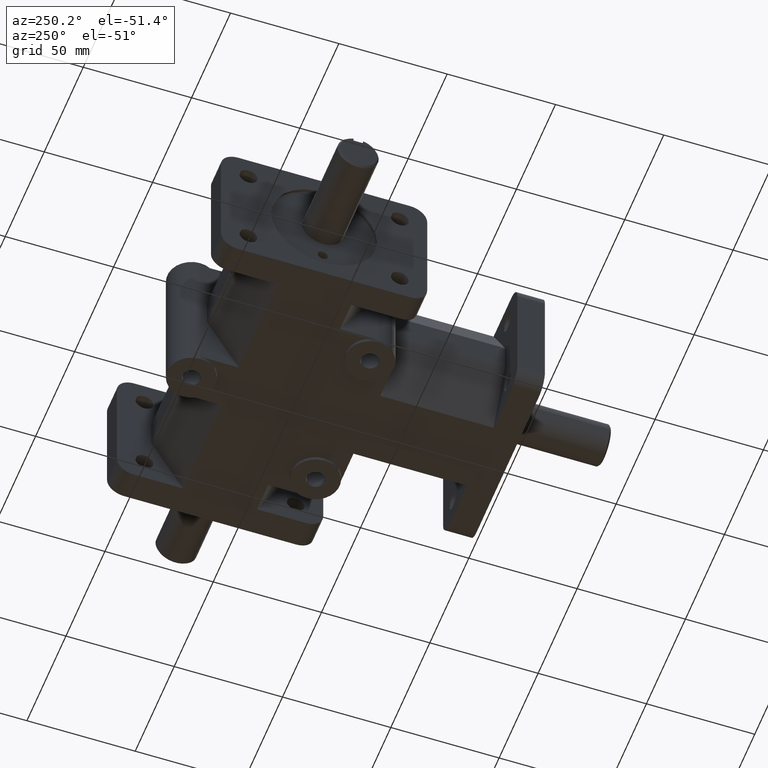
[diagram: clean part render]
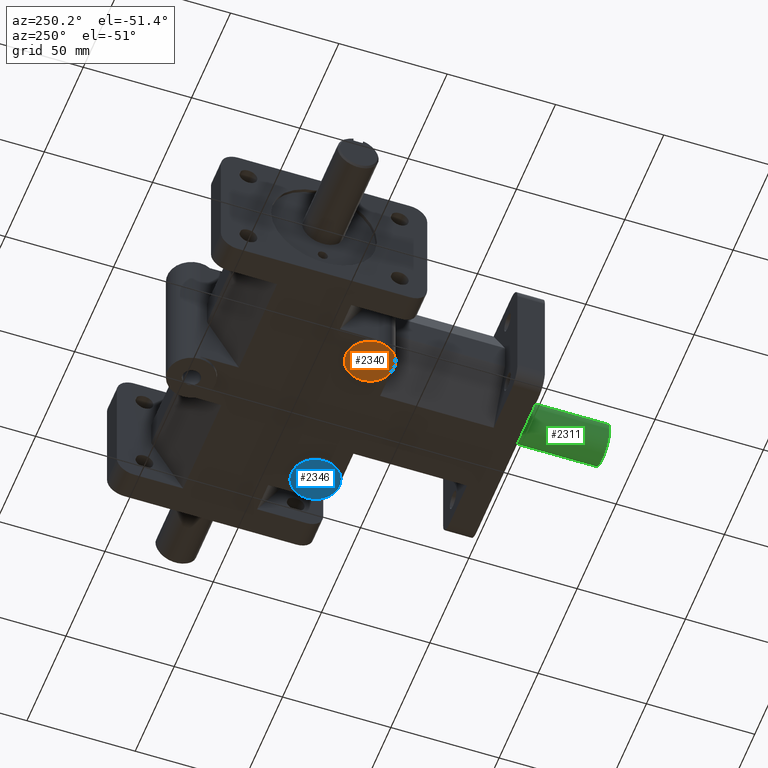
[diagram: same view with three faces highlighted in distinct colors, each labeled with its STEP entity id]
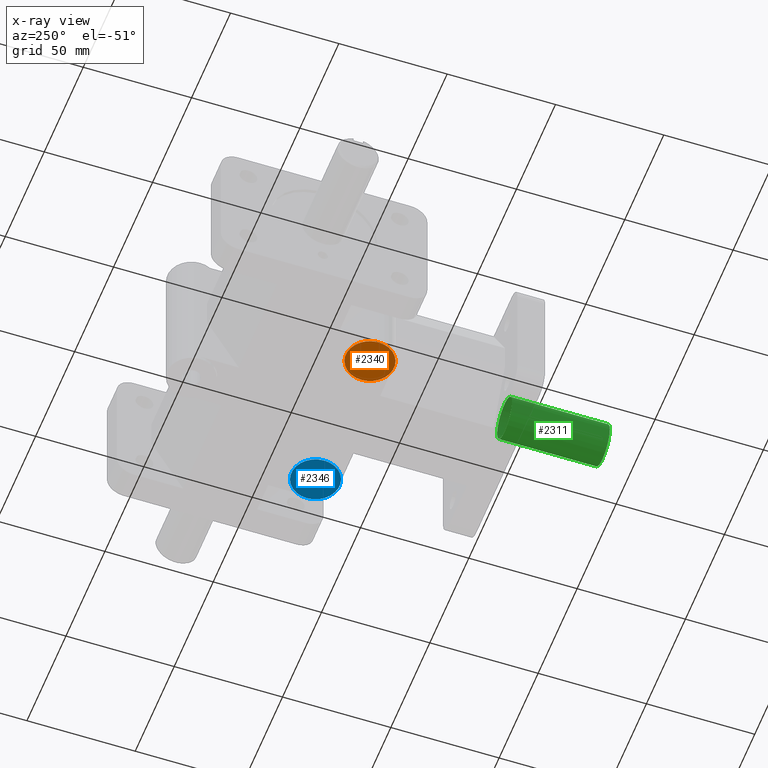
[diagram: x-ray of the same camera — body ghosted, the three highlighted faces saturated]
A machine part, auxiliary view with three faces highlighted in distinct colors.
The next image is the same camera in x-ray (body ghosted, the three faces saturated) — at least one of them is partly hidden behind the body in this view.
Their STEP definitions:

[orange] entity #2340 — the highlighted planar face has unit normal (0, 0, 1).
#535=FACE_BOUND('',#780,.T.);
#628=FACE_OUTER_BOUND('',#779,.T.);
#779=EDGE_LOOP('',(#1912));
#780=EDGE_LOOP('',(#1913));
#946=CIRCLE('',#2567,0.16375);
#953=CIRCLE('',#2578,0.4375);
#1147=VERTEX_POINT('',#3847);
#1154=VERTEX_POINT('',#3868);
#1429=EDGE_CURVE('',#1147,#1147,#946,.T.);
#1439=EDGE_CURVE('',#1154,#1154,#953,.T.);
#1912=ORIENTED_EDGE('',*,*,#1439,.F.);
#1913=ORIENTED_EDGE('',*,*,#1429,.T.);
#2221=PLANE('',#2577);
#2340=ADVANCED_FACE('',(#628,#535),#2221,.F.);
#2567=AXIS2_PLACEMENT_3D('',#3848,#3109,#3110);
#2577=AXIS2_PLACEMENT_3D('',#3867,#3132,#3133);
#2578=AXIS2_PLACEMENT_3D('',#3869,#3134,#3135);
#3109=DIRECTION('center_axis',(0.,0.,1.));
#3110=DIRECTION('ref_axis',(1.,0.,0.));
#3132=DIRECTION('center_axis',(0.,0.,1.));
#3133=DIRECTION('ref_axis',(-1.,0.,0.));
#3134=DIRECTION('center_axis',(0.,0.,1.));
#3135=DIRECTION('ref_axis',(1.,0.,0.));
#3847=CARTESIAN_POINT('',(-1.53875,3.,-1.3125));
#3848=CARTESIAN_POINT('Origin',(-1.375,3.,-1.3125));
#3867=CARTESIAN_POINT('Origin',(-1.33522727272727,3.,-1.3125));
#3868=CARTESIAN_POINT('',(-1.8125,3.,-1.3125));
#3869=CARTESIAN_POINT('Origin',(-1.375,3.,-1.3125));

[blue] entity #2346 — the highlighted planar face has unit normal (0, 0, 1).
#538=FACE_BOUND('',#789,.T.);
#634=FACE_OUTER_BOUND('',#788,.T.);
#788=EDGE_LOOP('',(#1944));
#789=EDGE_LOOP('',(#1945));
#948=CIRCLE('',#2570,0.16375);
#955=CIRCLE('',#2584,0.4375);
#1149=VERTEX_POINT('',#3853);
#1159=VERTEX_POINT('',#3885);
#1432=EDGE_CURVE('',#1149,#1149,#948,.T.);
#1447=EDGE_CURVE('',#1159,#1159,#955,.T.);
#1944=ORIENTED_EDGE('',*,*,#1447,.F.);
#1945=ORIENTED_EDGE('',*,*,#1432,.T.);
#2225=PLANE('',#2587);
#2346=ADVANCED_FACE('',(#634,#538),#2225,.F.);
#2570=AXIS2_PLACEMENT_3D('',#3854,#3116,#3117);
#2584=AXIS2_PLACEMENT_3D('',#3886,#3152,#3153);
#2587=AXIS2_PLACEMENT_3D('',#3892,#3161,#3162);
#3116=DIRECTION('center_axis',(0.,0.,1.));
#3117=DIRECTION('ref_axis',(1.,0.,0.));
#3152=DIRECTION('center_axis',(0.,0.,1.));
#3153=DIRECTION('ref_axis',(1.,0.,0.));
#3161=DIRECTION('center_axis',(0.,0.,1.));
#3162=DIRECTION('ref_axis',(-1.,0.,0.));
#3853=CARTESIAN_POINT('',(1.21125,3.,-1.3125));
#3854=CARTESIAN_POINT('Origin',(1.375,3.,-1.3125));
#3885=CARTESIAN_POINT('',(0.9375,3.,-1.3125));
#3886=CARTESIAN_POINT('Origin',(1.375,3.,-1.3125));
#3892=CARTESIAN_POINT('Origin',(1.41477272727273,3.,-1.3125));

[green] entity #2311 — the highlighted cylindrical surface (bore or boss wall) has radius 9.525 mm, axis along (0, -1, 0).
#141=LINE('',#3733,#363);
#142=LINE('',#3736,#364);
#143=LINE('',#3737,#365);
#363=VECTOR('',#2987,1.);
#364=VECTOR('',#2990,1.);
#365=VECTOR('',#2991,0.375);
#486=CYLINDRICAL_SURFACE('',#2522,0.375);
#599=FACE_OUTER_BOUND('',#749,.T.);
#749=EDGE_LOOP('',(#1785,#1786,#1787,#1788,#1789,#1790,#1791,#1792));
#870=CIRCLE('',#2426,0.375);
#924=CIRCLE('',#2519,0.375);
#925=CIRCLE('',#2520,0.375);
#927=CIRCLE('',#2523,0.375);
#976=VERTEX_POINT('',#3367);
#1112=VERTEX_POINT('',#3718);
#1113=VERTEX_POINT('',#3722);
#1114=VERTEX_POINT('',#3724);
#1116=VERTEX_POINT('',#3732);
#1117=VERTEX_POINT('',#3734);
#1197=EDGE_CURVE('',#976,#976,#870,.T.);
#1370=EDGE_CURVE('',#1112,#1113,#924,.T.);
#1371=EDGE_CURVE('',#1113,#1114,#925,.T.);
#1374=EDGE_CURVE('',#1112,#1116,#141,.T.);
#1375=EDGE_CURVE('',#1116,#1117,#927,.T.);
#1376=EDGE_CURVE('',#1117,#1114,#142,.T.);
#1377=EDGE_CURVE('',#1113,#976,#143,.T.);
#1785=ORIENTED_EDGE('',*,*,#1370,.F.);
#1786=ORIENTED_EDGE('',*,*,#1374,.T.);
#1787=ORIENTED_EDGE('',*,*,#1375,.T.);
#1788=ORIENTED_EDGE('',*,*,#1376,.T.);
#1789=ORIENTED_EDGE('',*,*,#1371,.F.);
#1790=ORIENTED_EDGE('',*,*,#1377,.T.);
#1791=ORIENTED_EDGE('',*,*,#1197,.F.);
#1792=ORIENTED_EDGE('',*,*,#1377,.F.);
#2311=ADVANCED_FACE('',(#599),#486,.T.);
#2426=AXIS2_PLACEMENT_3D('',#3368,#2677,#2678);
#2519=AXIS2_PLACEMENT_3D('',#3723,#2979,#2980);
#2520=AXIS2_PLACEMENT_3D('',#3725,#2981,#2982);
#2522=AXIS2_PLACEMENT_3D('',#3731,#2985,#2986);
#2523=AXIS2_PLACEMENT_3D('',#3735,#2988,#2989);
#2677=DIRECTION('center_axis',(0.,1.,0.));
#2678=DIRECTION('ref_axis',(1.,0.,0.));
#2979=DIRECTION('center_axis',(0.,-1.,0.));
#2980=DIRECTION('ref_axis',(1.,0.,0.));
#2981=DIRECTION('center_axis',(0.,-1.,0.));
#2982=DIRECTION('ref_axis',(1.,0.,0.));
#2985=DIRECTION('center_axis',(0.,-1.,0.));
#2986=DIRECTION('ref_axis',(1.,0.,0.));
#2987=DIRECTION('',(0.,1.,0.));
#2988=DIRECTION('center_axis',(0.,1.,0.));
#2989=DIRECTION('ref_axis',(1.,0.,0.));
#2990=DIRECTION('',(0.,-1.,0.));
#2991=DIRECTION('',(0.,1.,0.));
#3367=CARTESIAN_POINT('',(-0.375,0.06,-4.59242549680257E-17));
#3368=CARTESIAN_POINT('Origin',(0.,0.06,0.));
#3718=CARTESIAN_POINT('',(-0.09375,-1.72,0.363092188706945));
#3722=CARTESIAN_POINT('',(-0.375,-1.72,-4.59242549680257E-17));
#3723=CARTESIAN_POINT('Origin',(0.,-1.72,0.));
#3724=CARTESIAN_POINT('',(0.09375,-1.72,0.363092188706945));
#3725=CARTESIAN_POINT('Origin',(0.,-1.72,0.));
#3731=CARTESIAN_POINT('Origin',(0.,0.,0.));
#3732=CARTESIAN_POINT('',(-0.09375,-0.25,0.363092188706945));
#3733=CARTESIAN_POINT('',(-0.09375,0.,0.363092188706945));
#3734=CARTESIAN_POINT('',(0.09375,-0.25,0.363092188706945));
#3735=CARTESIAN_POINT('Origin',(0.,-0.25,0.));
#3736=CARTESIAN_POINT('',(0.09375,0.,0.363092188706945));
#3737=CARTESIAN_POINT('',(-0.375,0.,-4.59242549680257E-17));